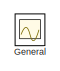
[diagram: root canvas - part 1/2, top left region]
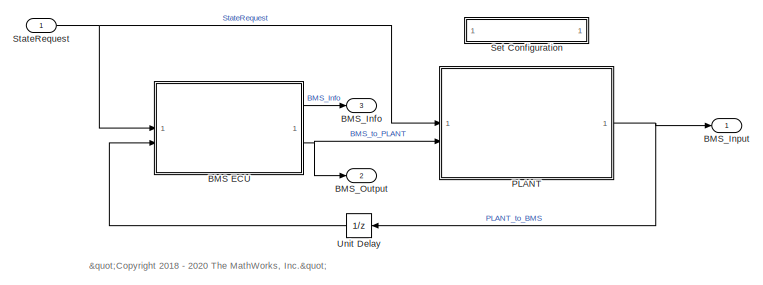
[diagram: root canvas - part 2/2, bottom right region]
MODEL slx_573d39745e71
KIND model
BLOCK [ModelReference] BMS ECU
  ModelNameDialog = BMS_Software
  ModelReferenceVersion = 6.0
BLOCK [Outport] BMS_Info
  BusOutputAsStruct = on
  OutDataTypeStr = Bus: BMS_Info
  Port = 3
  VectorParamsAs1DForOutWhenUnconnected = off
BLOCK [Outport] BMS_Input
  OutDataTypeStr = Bus: BMS_Input
  VectorParamsAs1DForOutWhenUnconnected = off
BLOCK [Outport] BMS_Output
  OutDataTypeStr = Bus: BMS_Output
  Port = 2
  VectorParamsAs1DForOutWhenUnconnected = off
BLOCK [Scope] General
  Floating = off
  IOType = viewer
  NumInputPorts = 1
  ScopeSpecificationString = Simulink.scopes.TimeScopeBlockCfg('CurrentConfiguration', extmgr.ConfigurationSet(extmgr.Configuration('Core','General UI',true),extmgr.Configuration('Core','Source UI',true),extmgr.Configuration('Sources','WiredSimulink',true,'DataLoggingVariableName','ScopeData1'),extmgr.Configuration('Visuals','Time Domain',true,'SerializedDisplays',{struct('MinYLimReal','2.91033','MaxYLimReal','4.02785','YLabe...<+4805ch>
BLOCK [ModelReference] PLANT
  ModelNameDialog = Battery_Model
  ModelReferenceVersion = 4.0
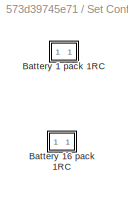
BLOCK [SubSystem] Set Configuration
BLOCK [SubSystem] Set Configuration/Battery 1 pack 1RC
  OpenFcn = SharedDictionaryObj = Simulink.data.dictionary.open('Shared_DD.sldd');\ntry removeDataSource(SharedDictionaryObj,'Battery_1Pack_1RC.sldd')\nend\ntry removeDataSource(SharedDictionaryObj,'Battery_16Packs_1RC.sldd')\nend\naddDataSource(SharedDictionaryObj,'Battery_1Pack_1RC.sldd')
BLOCK [SubSystem] Set Configuration/Battery 16 pack 1RC
  OpenFcn = SharedDictionaryObj = Simulink.data.dictionary.open('Shared_DD.sldd');\ntry removeDataSource(SharedDictionaryObj,'Battery_1Pack_1RC.sldd')\nend\ntry removeDataSource(SharedDictionaryObj,'Battery_16Packs_1RC.sldd')\nend\naddDataSource(SharedDictionaryObj,'Battery_16Packs_1RC.sldd')
BLOCK [Inport] StateRequest
  OutDataTypeStr = Enum: SRE
BLOCK [UnitDelay] Unit Delay
  HasFrameUpgradeWarning = on
  InitialCondition = struct('Cell_Voltages',3.6*ones(1, Ns_Module*NumModules),'Pack_Voltage',3.6*Ns_Module*NumModules,'Pack_Current',0,'Vout_Chgr',0,'Vout_Invtr',0,'Cell_Temperatures',293.15*ones(1,Ns_Module*NumModules))
  SampleTime = -1
ANNOTATION (root): "<copyright redacted>
LINE BMS ECU:1 -> BMS_Info:1
NET BMS ECU:2 -> BMS_Output:1, PLANT:2
NET PLANT:1 -> BMS_Input:1, Unit Delay:1
NET StateRequest:1 -> BMS ECU:1, PLANT:1
LINE Unit Delay:1 -> BMS ECU:2
note: NET lines group one-source signal fan-out (src -> all destinations, sorted); 1:1 wires keep LINE
